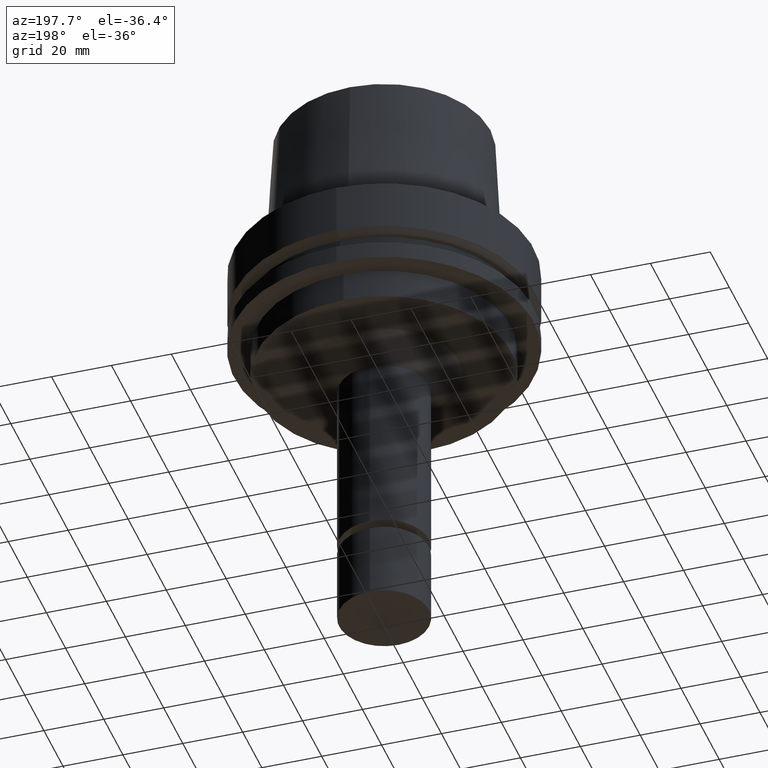
[diagram: clean part render]
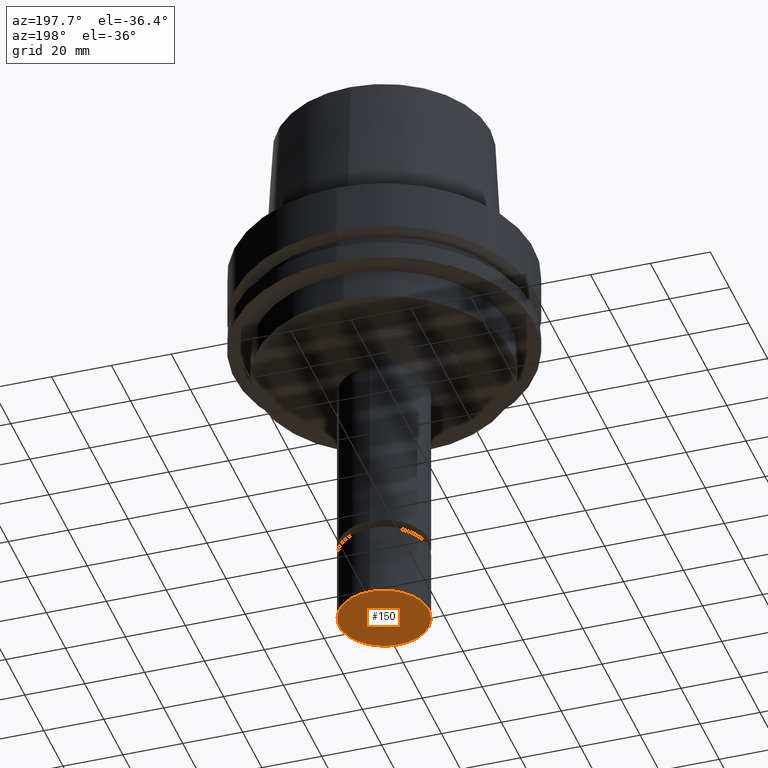
[diagram: same view with one face highlighted and labeled with its STEP entity id]
A machine part, auxiliary view. The second image highlights one B-rep face of the part: STEP entity #150.
In plain terms, the highlighted planar face has unit normal (0, 0, -1).
Its self-contained STEP definition (entity closure, byte-faithful):
#126=EDGE_CURVE('Unnamed[1]',#290,#290,#291,.T.);
#150=ADVANCED_FACE('Unnamed[1]',(#326),#327,.T.);
#290=VERTEX_POINT('',#508);
#291=CIRCLE('',#509,15.0);
#326=FACE_OUTER_BOUND('',#552,.T.);
#327=PLANE('',#553);
#508=CARTESIAN_POINT('',(8.26636589424463E-015,15.0,-135.0));
#509=AXIS2_PLACEMENT_3D('',#727,#728,#729);
#552=EDGE_LOOP('',(#765));
#553=AXIS2_PLACEMENT_3D('',#766,#767,#768);
#727=CARTESIAN_POINT('',(8.26636589424463E-015,1.65327317884893E-014,-135.0));
#728=DIRECTION('',(6.12323399573677E-017,1.22464679914735E-016,-1.0));
#729=DIRECTION('',(-1.23259516440783E-032,1.0,1.22464679914735E-016));
#765=ORIENTED_EDGE('',*,*,#126,.T.);
#766=CARTESIAN_POINT('',(8.26636589424463E-015,7.50000000000002,-135.0));
#767=DIRECTION('',(6.12323399573677E-017,1.22464679914735E-016,-1.0));
#768=DIRECTION('',(-1.23259516440783E-032,1.0,1.22464679914735E-016));